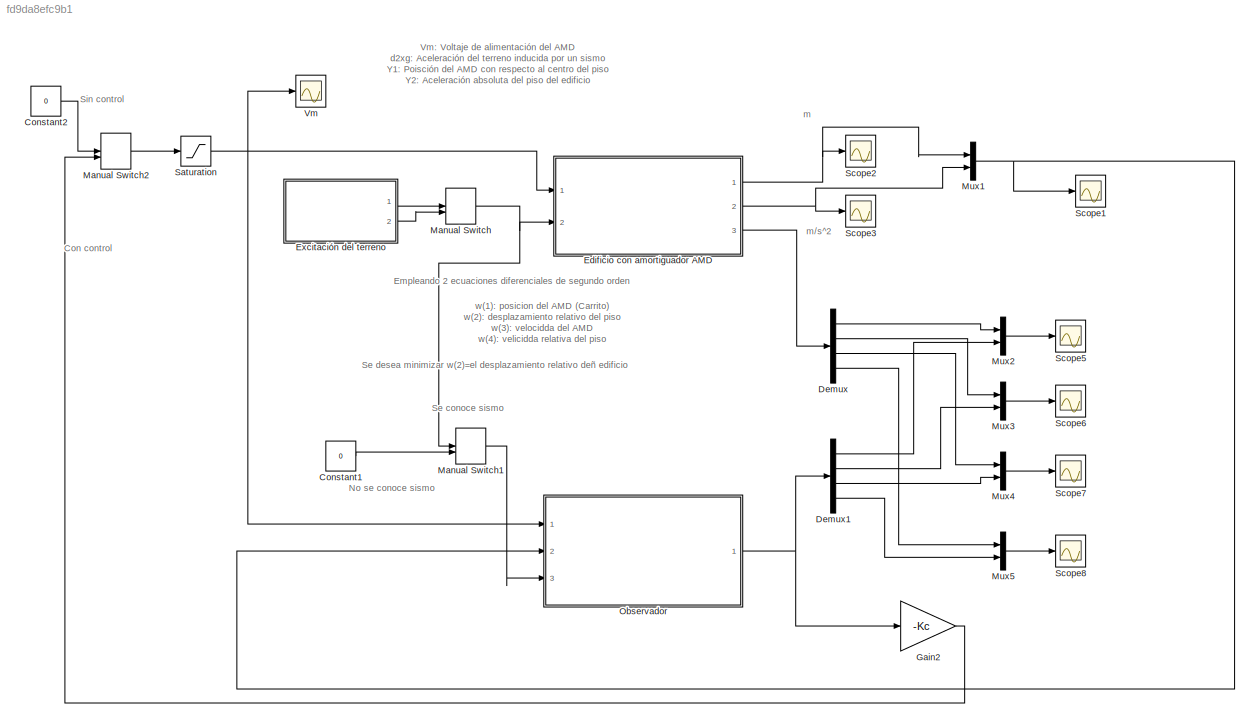
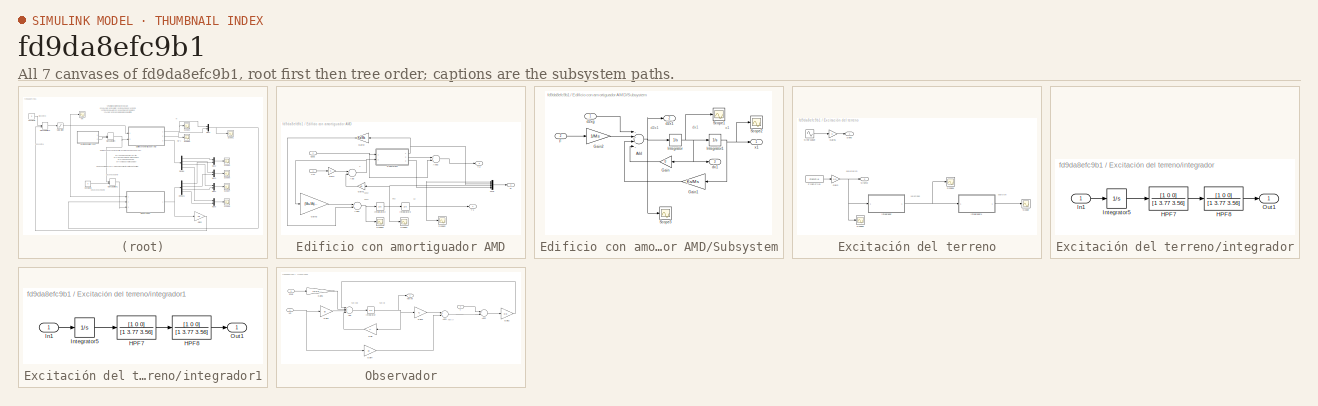
[diagram: thumbnail index - all 7 canvases of the model, root first then tree order]
MODEL slx_fd9da8efc9b1
KIND model
CONFIG AbsTol = auto
CONFIG FixedStep = 0.001
CONFIG MaxStep = auto
CONFIG MinStep = auto
CONFIG RelTol = 1e-3
CONFIG SampleTimeConstraint = Unconstrained
CONFIG Solver = ode5
CONFIG SolverMode = Auto
CONFIG SolverName = ode5
CONFIG StartTime = 0.0
CONFIG StopTime = 18
BLOCK [Constant] Constant1
  Value = 0
BLOCK [Constant] Constant2
  Value = 0
BLOCK [Demux] Demux
  DisplayOption = bar
  Ports = [1, 4]
BLOCK [Demux] Demux1
  DisplayOption = bar
  Ports = [1, 4]
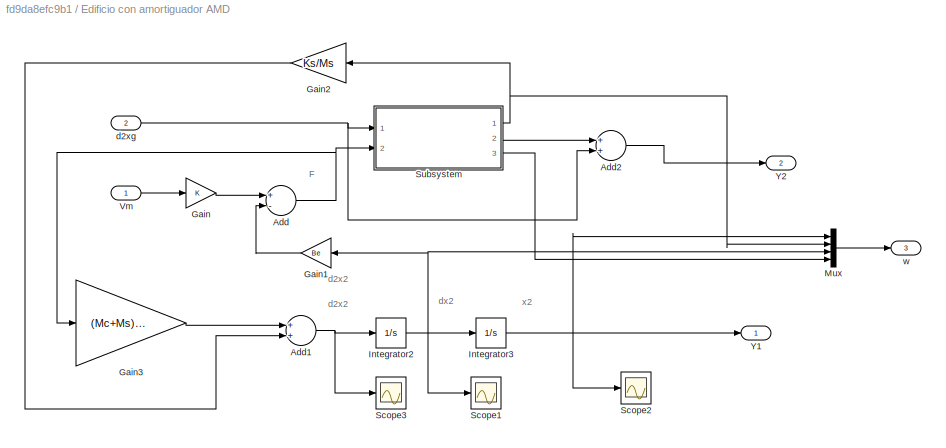
BLOCK [SubSystem] Edificio con amortiguador AMD
  Ports = [2, 3]
  RequestExecContextInheritance = off
BLOCK [Sum] Edificio con amortiguador AMD/Add
  InputSameDT = off
  Inputs = +-
  OutDataTypeStr = Inherit: Inherit via internal rule
  Ports = [2, 1]
  SaturateOnIntegerOverflow = off
BLOCK [Sum] Edificio con amortiguador AMD/Add1
  InputSameDT = off
  OutDataTypeStr = Inherit: Inherit via internal rule
  Ports = [2, 1]
  SaturateOnIntegerOverflow = off
BLOCK [Sum] Edificio con amortiguador AMD/Add2
  InputSameDT = off
  OutDataTypeStr = Inherit: Inherit via internal rule
  Ports = [2, 1]
  SaturateOnIntegerOverflow = off
BLOCK [Gain] Edificio con amortiguador AMD/Gain
  Gain = K
  OutDataTypeStr = Inherit: Inherit via internal rule
  ParamDataTypeStr = Inherit: Inherit via internal rule
  SaturateOnIntegerOverflow = off
BLOCK [Gain] Edificio con amortiguador AMD/Gain1
  Gain = Be
  OutDataTypeStr = Inherit: Inherit via internal rule
  ParamDataTypeStr = Inherit: Inherit via internal rule
  SaturateOnIntegerOverflow = off
BLOCK [Gain] Edificio con amortiguador AMD/Gain2
  Gain = Ks/Ms
  OutDataTypeStr = Inherit: Inherit via internal rule
  ParamDataTypeStr = Inherit: Inherit via internal rule
  SaturateOnIntegerOverflow = off
BLOCK [Gain] Edificio con amortiguador AMD/Gain3
  Gain = (Mc+Ms)/(Mc*Ms)
  OutDataTypeStr = Inherit: Inherit via internal rule
  ParamDataTypeStr = Inherit: Inherit via internal rule
  SaturateOnIntegerOverflow = off
BLOCK [Integrator] Edificio con amortiguador AMD/Integrator2
  Ports = [1, 1]
BLOCK [Integrator] Edificio con amortiguador AMD/Integrator3
  Ports = [1, 1]
BLOCK [Mux] Edificio con amortiguador AMD/Mux
  DisplayOption = bar
  Ports = [4, 1]
BLOCK [Scope] Edificio con amortiguador AMD/Scope1
  Floating = off
  LimitDataPoints = off
  NumInputPorts = 1
  Ports = [1]
  SaveName = ScopeData8
BLOCK [Scope] Edificio con amortiguador AMD/Scope2
  Floating = off
  LimitDataPoints = off
  NumInputPorts = 1
  Ports = [1]
  SaveName = ScopeData7
BLOCK [Scope] Edificio con amortiguador AMD/Scope3
  Floating = off
  LimitDataPoints = off
  NumInputPorts = 1
  Ports = [1]
  SaveName = ScopeData9
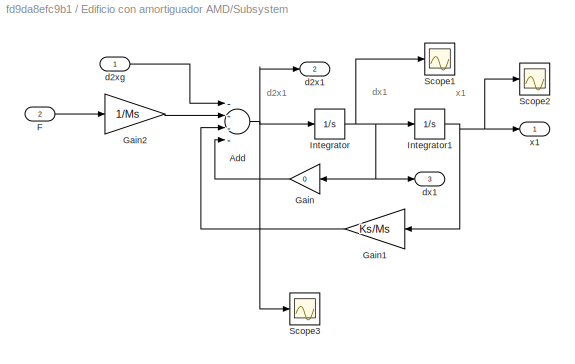
BLOCK [SubSystem] Edificio con amortiguador AMD/Subsystem
  Ports = [2, 3]
  RequestExecContextInheritance = off
BLOCK [Sum] Edificio con amortiguador AMD/Subsystem/Add
  InputSameDT = off
  Inputs = ----
  OutDataTypeStr = Inherit: Inherit via internal rule
  Ports = [4, 1]
  SaturateOnIntegerOverflow = off
BLOCK [Inport] Edificio con amortiguador AMD/Subsystem/F
  IconDisplay = Port number
  Port = 2
BLOCK [Gain] Edificio con amortiguador AMD/Subsystem/Gain
  Gain = 0
  OutDataTypeStr = Inherit: Inherit via internal rule
  ParamDataTypeStr = Inherit: Inherit via internal rule
  SaturateOnIntegerOverflow = off
BLOCK [Gain] Edificio con amortiguador AMD/Subsystem/Gain1
  Gain = Ks/Ms
  OutDataTypeStr = Inherit: Inherit via internal rule
  ParamDataTypeStr = Inherit: Inherit via internal rule
  SaturateOnIntegerOverflow = off
BLOCK [Gain] Edificio con amortiguador AMD/Subsystem/Gain2
  Gain = 1/Ms
  OutDataTypeStr = Inherit: Inherit via internal rule
  ParamDataTypeStr = Inherit: Inherit via internal rule
  SaturateOnIntegerOverflow = off
BLOCK [Integrator] Edificio con amortiguador AMD/Subsystem/Integrator
  Ports = [1, 1]
BLOCK [Integrator] Edificio con amortiguador AMD/Subsystem/Integrator1
  Ports = [1, 1]
BLOCK [Scope] Edificio con amortiguador AMD/Subsystem/Scope1
  Floating = off
  LimitDataPoints = off
  NumInputPorts = 1
  Ports = [1]
  SaveName = ScopeData5
BLOCK [Scope] Edificio con amortiguador AMD/Subsystem/Scope2
  Floating = off
  LimitDataPoints = off
  NumInputPorts = 1
  Ports = [1]
  SaveName = ScopeData4
BLOCK [Scope] Edificio con amortiguador AMD/Subsystem/Scope3
  Floating = off
  LimitDataPoints = off
  NumInputPorts = 1
  Ports = [1]
  SaveName = ScopeData6
BLOCK [Outport] Edificio con amortiguador AMD/Subsystem/d2x1
  IconDisplay = Port number
  Port = 2
BLOCK [Inport] Edificio con amortiguador AMD/Subsystem/d2xg
  IconDisplay = Port number
BLOCK [Outport] Edificio con amortiguador AMD/Subsystem/dx1
  IconDisplay = Port number
  Port = 3
BLOCK [Outport] Edificio con amortiguador AMD/Subsystem/x1
  IconDisplay = Port number
BLOCK [Inport] Edificio con amortiguador AMD/Vm
  IconDisplay = Port number
BLOCK [Outport] Edificio con amortiguador AMD/Y1
  IconDisplay = Port number
BLOCK [Outport] Edificio con amortiguador AMD/Y2
  IconDisplay = Port number
  Port = 2
BLOCK [Inport] Edificio con amortiguador AMD/d2xg
  IconDisplay = Port number
  Port = 2
BLOCK [Outport] Edificio con amortiguador AMD/w
  IconDisplay = Port number
  Port = 3
BLOCK [SubSystem] Excitación del terreno
  Ports = [0, 2]
  RequestExecContextInheritance = off
BLOCK [FromFile] Excitación del terreno/From File
  FileName = sismo_mex85.mat
  SampleTime = 0.001
BLOCK [Gain] Excitación del terreno/Gain
  Gain = 0.5
  OutDataTypeStr = Inherit: Inherit via internal rule
  ParamDataTypeStr = Inherit: Inherit via internal rule
  SaturateOnIntegerOverflow = off
BLOCK [Gain] Excitación del terreno/Gain1
  Gain = 5
  OutDataTypeStr = Inherit: Inherit via internal rule
  ParamDataTypeStr = Inherit: Inherit via internal rule
  SaturateOnIntegerOverflow = off
BLOCK [Scope] Excitación del terreno/Scope
  Floating = off
  LimitDataPoints = off
  NumInputPorts = 1
  Ports = [1]
  SaveName = ScopeData14
BLOCK [Scope] Excitación del terreno/Scope1
  Floating = off
  LimitDataPoints = off
  NumInputPorts = 1
  Ports = [1]
  SaveName = ScopeData15
BLOCK [Scope] Excitación del terreno/Scope2
  Floating = off
  NumInputPorts = 1
  Ports = [1]
  SaveName = ScopeData16
BLOCK [Outport] Excitación del terreno/Seno
  IconDisplay = Port number
BLOCK [Sin] Excitación del terreno/Sine Wave
  Ports = [0, 1]
  SampleTime = 0
BLOCK [Outport] Excitación del terreno/Sismo
  IconDisplay = Port number
  Port = 2
BLOCK [SubSystem] Excitación del terreno/integrador
  Ports = [1, 1]
  RequestExecContextInheritance = off
BLOCK [TransferFcn] Excitación del terreno/integrador/HPF7
  Denominator = [1 3.77 3.56]
  Numerator = [1 0 0]
BLOCK [TransferFcn] Excitación del terreno/integrador/HPF8
  Denominator = [1 3.77 3.56]
  Numerator = [1 0 0]
BLOCK [Inport] Excitación del terreno/integrador/In1
  IconDisplay = Port number
BLOCK [Integrator] Excitación del terreno/integrador/Integrator5
  Ports = [1, 1]
BLOCK [Outport] Excitación del terreno/integrador/Out1
  IconDisplay = Port number
BLOCK [SubSystem] Excitación del terreno/integrador1
  Ports = [1, 1]
  RequestExecContextInheritance = off
BLOCK [TransferFcn] Excitación del terreno/integrador1/HPF7
  Denominator = [1 3.77 3.56]
  Numerator = [1 0 0]
BLOCK [TransferFcn] Excitación del terreno/integrador1/HPF8
  Denominator = [1 3.77 3.56]
  Numerator = [1 0 0]
BLOCK [Inport] Excitación del terreno/integrador1/In1
  IconDisplay = Port number
BLOCK [Integrator] Excitación del terreno/integrador1/Integrator5
  Ports = [1, 1]
BLOCK [Outport] Excitación del terreno/integrador1/Out1
  IconDisplay = Port number
BLOCK [Gain] Gain2
  Gain = -Kc
  Multiplication = Matrix(K*u)
  OutDataTypeStr = Inherit: Inherit via internal rule
  ParamDataTypeStr = Inherit: Inherit via internal rule
  SaturateOnIntegerOverflow = off
BLOCK [ManualSwitch] Manual Switch
  CurrentSetting = 0
BLOCK [ManualSwitch] Manual Switch1
  CurrentSetting = 0
BLOCK [ManualSwitch] Manual Switch2
  CurrentSetting = 0
BLOCK [Mux] Mux1
  DisplayOption = bar
  Inputs = 2
  Ports = [2, 1]
BLOCK [Mux] Mux2
  DisplayOption = bar
  Inputs = 2
  Ports = [2, 1]
BLOCK [Mux] Mux3
  DisplayOption = bar
  Inputs = 2
  Ports = [2, 1]
BLOCK [Mux] Mux4
  DisplayOption = bar
  Inputs = 2
  Ports = [2, 1]
BLOCK [Mux] Mux5
  DisplayOption = bar
  Inputs = 2
  Ports = [2, 1]
BLOCK [SubSystem] Observador
  Ports = [3, 1]
  RequestExecContextInheritance = off
BLOCK [Sum] Observador/Add
  InputSameDT = off
  Inputs = ++++
  OutDataTypeStr = Inherit: Inherit via internal rule
  Ports = [4, 1]
  SaturateOnIntegerOverflow = off
BLOCK [Sum] Observador/Add1
  InputSameDT = off
  OutDataTypeStr = Inherit: Inherit via internal rule
  Ports = [2, 1]
  SaturateOnIntegerOverflow = off
BLOCK [Sum] Observador/Add2
  InputSameDT = off
  Inputs = +-
  OutDataTypeStr = Inherit: Inherit via internal rule
  Ports = [2, 1]
  SaturateOnIntegerOverflow = off
BLOCK [Gain] Observador/Gain
  Gain = A
  Multiplication = Matrix(K*u)
  OutDataTypeStr = Inherit: Inherit via internal rule
  ParamDataTypeStr = Inherit: Inherit via internal rule
  SaturateOnIntegerOverflow = off
BLOCK [Gain] Observador/Gain1
  Gain = B
  Multiplication = Matrix(K*u)
  OutDataTypeStr = Inherit: Inherit via internal rule
  ParamDataTypeStr = Inherit: Inherit via internal rule
  SaturateOnIntegerOverflow = off
BLOCK [Gain] Observador/Gain2
  Gain = Ko
  Multiplication = Matrix(K*u)
  OutDataTypeStr = Inherit: Inherit via internal rule
  ParamDataTypeStr = Inherit: Inherit via internal rule
  SaturateOnIntegerOverflow = off
BLOCK [Gain] Observador/Gain3
  Gain = C
  Multiplication = Matrix(K*u)
  OutDataTypeStr = Inherit: Inherit via internal rule
  ParamDataTypeStr = Inherit: Inherit via internal rule
  SaturateOnIntegerOverflow = off
BLOCK [Gain] Observador/Gain4
  Gain = D
  Multiplication = Matrix(K*u)
  OutDataTypeStr = Inherit: Inherit via internal rule
  ParamDataTypeStr = Inherit: Inherit via internal rule
  SaturateOnIntegerOverflow = off
BLOCK [Gain] Observador/Gain5
  Gain = [0;0;0;-1]
  Multiplication = Matrix(K*u)
  OutDataTypeStr = Inherit: Inherit via internal rule
  ParamDataTypeStr = Inherit: Inherit via internal rule
  SaturateOnIntegerOverflow = off
BLOCK [Integrator] Observador/Integrator
  Ports = [1, 1]
BLOCK [Inport] Observador/Vm
  IconDisplay = Port number
BLOCK [Inport] Observador/Y
  IconDisplay = Port number
  Port = 2
BLOCK [Inport] Observador/d2xg
  IconDisplay = Port number
  Port = 3
BLOCK [Outport] Observador/hat(w)
  IconDisplay = Port number
BLOCK [Saturate] Saturation
  InputPortMap = u0
  LowerLimit = -10
  Ports = [1, 1]
  UpperLimit = 10
BLOCK [Scope] Scope1
  Floating = off
  LimitDataPoints = off
  NumInputPorts = 1
  Ports = [1]
BLOCK [Scope] Scope2
  Floating = off
  LimitDataPoints = off
  NumInputPorts = 1
  Ports = [1]
  SaveName = ScopeData2
BLOCK [Scope] Scope3
  Floating = off
  LimitDataPoints = off
  NumInputPorts = 1
  Ports = [1]
  SaveName = ScopeData3
BLOCK [Scope] Scope5
  Floating = off
  LimitDataPoints = off
  NumInputPorts = 1
  Ports = [1]
  SaveName = ScopeData10
BLOCK [Scope] Scope6
  Floating = off
  LimitDataPoints = off
  NumInputPorts = 1
  Ports = [1]
  SaveName = ScopeData11
BLOCK [Scope] Scope7
  Floating = off
  LimitDataPoints = off
  NumInputPorts = 1
  Ports = [1]
  SaveName = ScopeData12
BLOCK [Scope] Scope8
  Floating = off
  LimitDataPoints = off
  NumInputPorts = 1
  Ports = [1]
  SaveName = ScopeData13
BLOCK [Scope] Vm
  Floating = off
  LimitDataPoints = off
  NumInputPorts = 1
  Ports = [1]
  SaveName = ScopeData1
ANNOTATION (root): Con control
ANNOTATION (root): Empleando 2 ecuaciones diferenciales de segundo orden
ANNOTATION (root): No se conoce sismo
ANNOTATION (root): Se conoce sismo
ANNOTATION (root): Se desea minimizar w(2)=el desplazamiento relativo deñ edificio
ANNOTATION (root): Sin control
ANNOTATION (root): Vm: Voltaje de alimentación del AMD d2xg: Aceleración del terreno inducida por un sismo Y1: Poisción del AMD con respecto al centro del piso Y2: Aceleración absoluta del piso del edificio
ANNOTATION (root): m
ANNOTATION (root): m/s^2
ANNOTATION (root): w(1): posicion del AMD (Carrito) w(2): desplazamiento relativo del piso w(3): velocidda del AMD w(4): velicidda relativa del piso
ANNOTATION Edificio con amortiguador AMD: F
ANNOTATION Edificio con amortiguador AMD: d2x2
ANNOTATION Edificio con amortiguador AMD: dx2
ANNOTATION Edificio con amortiguador AMD: x2
ANNOTATION Edificio con amortiguador AMD/Subsystem: d2x1
ANNOTATION Edificio con amortiguador AMD/Subsystem: dx1
ANNOTATION Edificio con amortiguador AMD/Subsystem: x1
ANNOTATION Excitación del terreno: aceleración
ANNOTATION Excitación del terreno: posición
ANNOTATION Excitación del terreno: velocidad
ANNOTATION Observador: hat(dw)
ANNOTATION Observador: hat(w)
ANNOTATION Observador: hat(y)
LINE Constant1:1 -> Manual Switch1:2
LINE Constant2:1 -> Manual Switch2:1
LINE Demux1:1 -> Mux2:2
LINE Demux1:2 -> Mux3:2
LINE Demux1:3 -> Mux4:2
LINE Demux1:4 -> Mux5:2
LINE Demux:1 -> Mux2:1
LINE Demux:2 -> Mux3:1
LINE Demux:3 -> Mux4:1
LINE Demux:4 -> Mux5:1
NET Edificio con amortiguador AMD/Add1:1 -> Edificio con amortiguador AMD/Integrator2:1, Edificio con amortiguador AMD/Scope3:1
LINE Edificio con amortiguador AMD/Add2:1 -> Edificio con amortiguador AMD/Y2:1
NET Edificio con amortiguador AMD/Add:1 -> Edificio con amortiguador AMD/Gain3:1, Edificio con amortiguador AMD/Subsystem:2
LINE Edificio con amortiguador AMD/Gain1:1 -> Edificio con amortiguador AMD/Add:2
LINE Edificio con amortiguador AMD/Gain2:1 -> Edificio con amortiguador AMD/Add1:2
LINE Edificio con amortiguador AMD/Gain3:1 -> Edificio con amortiguador AMD/Add1:1
LINE Edificio con amortiguador AMD/Gain:1 -> Edificio con amortiguador AMD/Add:1
NET Edificio con amortiguador AMD/Integrator2:1 -> Edificio con amortiguador AMD/Gain1:1, Edificio con amortiguador AMD/Integrator3:1, Edificio con amortiguador AMD/Mux:3, Edificio con amortiguador AMD/Scope1:1
NET Edificio con amortiguador AMD/Integrator3:1 -> Edificio con amortiguador AMD/Mux:1, Edificio con amortiguador AMD/Scope2:1, Edificio con amortiguador AMD/Y1:1
LINE Edificio con amortiguador AMD/Mux:1 -> Edificio con amortiguador AMD/w:1
NET Edificio con amortiguador AMD/Subsystem/Add:1 -> Edificio con amortiguador AMD/Subsystem/Integrator:1, Edificio con amortiguador AMD/Subsystem/Scope3:1, Edificio con amortiguador AMD/Subsystem/d2x1:1
LINE Edificio con amortiguador AMD/Subsystem/F:1 -> Edificio con amortiguador AMD/Subsystem/Gain2:1
LINE Edificio con amortiguador AMD/Subsystem/Gain1:1 -> Edificio con amortiguador AMD/Subsystem/Add:3
LINE Edificio con amortiguador AMD/Subsystem/Gain2:1 -> Edificio con amortiguador AMD/Subsystem/Add:2
LINE Edificio con amortiguador AMD/Subsystem/Gain:1 -> Edificio con amortiguador AMD/Subsystem/Add:4
NET Edificio con amortiguador AMD/Subsystem/Integrator1:1 -> Edificio con amortiguador AMD/Subsystem/Gain1:1, Edificio con amortiguador AMD/Subsystem/Scope2:1, Edificio con amortiguador AMD/Subsystem/x1:1
NET Edificio con amortiguador AMD/Subsystem/Integrator:1 -> Edificio con amortiguador AMD/Subsystem/Gain:1, Edificio con amortiguador AMD/Subsystem/Integrator1:1, Edificio con amortiguador AMD/Subsystem/Scope1:1, Edificio con amortiguador AMD/Subsystem/dx1:1
LINE Edificio con amortiguador AMD/Subsystem/d2xg:1 -> Edificio con amortiguador AMD/Subsystem/Add:1
NET Edificio con amortiguador AMD/Subsystem:1 -> Edificio con amortiguador AMD/Gain2:1, Edificio con amortiguador AMD/Mux:2
LINE Edificio con amortiguador AMD/Subsystem:2 -> Edificio con amortiguador AMD/Add2:1
LINE Edificio con amortiguador AMD/Subsystem:3 -> Edificio con amortiguador AMD/Mux:4
LINE Edificio con amortiguador AMD/Vm:1 -> Edificio con amortiguador AMD/Gain:1
NET Edificio con amortiguador AMD/d2xg:1 -> Edificio con amortiguador AMD/Add2:2, Edificio con amortiguador AMD/Subsystem:1
NET Edificio con amortiguador AMD:1 -> Mux1:1, Scope2:1
NET Edificio con amortiguador AMD:2 -> Mux1:2, Scope3:1
LINE Edificio con amortiguador AMD:3 -> Demux:1
LINE Excitación del terreno/From File:1 -> Excitación del terreno/Gain:1
LINE Excitación del terreno/Gain1:1 -> Excitación del terreno/Seno:1
NET Excitación del terreno/Gain:1 -> Excitación del terreno/Scope2:1, Excitación del terreno/Sismo:1, Excitación del terreno/integrador:1
LINE Excitación del terreno/Sine Wave:1 -> Excitación del terreno/Gain1:1
LINE Excitación del terreno/integrador/HPF7:1 -> Excitación del terreno/integrador/HPF8:1
LINE Excitación del terreno/integrador/HPF8:1 -> Excitación del terreno/integrador/Out1:1
LINE Excitación del terreno/integrador/In1:1 -> Excitación del terreno/integrador/Integrator5:1
LINE Excitación del terreno/integrador/Integrator5:1 -> Excitación del terreno/integrador/HPF7:1
LINE Excitación del terreno/integrador1/HPF7:1 -> Excitación del terreno/integrador1/HPF8:1
LINE Excitación del terreno/integrador1/HPF8:1 -> Excitación del terreno/integrador1/Out1:1
LINE Excitación del terreno/integrador1/In1:1 -> Excitación del terreno/integrador1/Integrator5:1
LINE Excitación del terreno/integrador1/Integrator5:1 -> Excitación del terreno/integrador1/HPF7:1
LINE Excitación del terreno/integrador1:1 -> Excitación del terreno/Scope:1
NET Excitación del terreno/integrador:1 -> Excitación del terreno/Scope1:1, Excitación del terreno/integrador1:1
LINE Excitación del terreno:1 -> Manual Switch:1
LINE Excitación del terreno:2 -> Manual Switch:2
LINE Gain2:1 -> Manual Switch2:2
LINE Manual Switch1:1 -> Observador:3
LINE Manual Switch2:1 -> Saturation:1
NET Manual Switch:1 -> Edificio con amortiguador AMD:2, Manual Switch1:1
NET Mux1:1 -> Observador:2, Scope1:1
LINE Mux2:1 -> Scope5:1
LINE Mux3:1 -> Scope6:1
LINE Mux4:1 -> Scope7:1
LINE Mux5:1 -> Scope8:1
LINE Observador/Add1:1 -> Observador/Add2:2
LINE Observador/Add2:1 -> Observador/Gain2:1
LINE Observador/Add:1 -> Observador/Integrator:1
LINE Observador/Gain1:1 -> Observador/Add:3
LINE Observador/Gain2:1 -> Observador/Add:1
LINE Observador/Gain3:1 -> Observador/Add1:1
LINE Observador/Gain4:1 -> Observador/Add1:2
LINE Observador/Gain5:1 -> Observador/Add:2
LINE Observador/Gain:1 -> Observador/Add:4
NET Observador/Integrator:1 -> Observador/Gain3:1, Observador/Gain:1, Observador/hat(w):1
NET Observador/Vm:1 -> Observador/Gain1:1, Observador/Gain4:1
LINE Observador/Y:1 -> Observador/Add2:1
LINE Observador/d2xg:1 -> Observador/Gain5:1
NET Observador:1 -> Demux1:1, Gain2:1
NET Saturation:1 -> Edificio con amortiguador AMD:1, Observador:1, Vm:1
note: NET lines group one-source signal fan-out (src -> all destinations, sorted); 1:1 wires keep LINE
